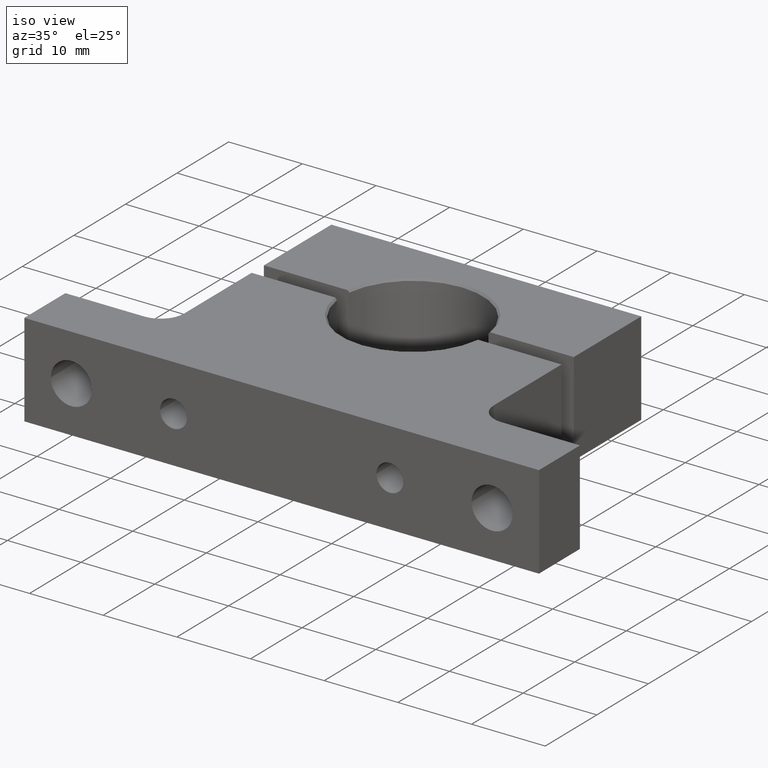
[diagram: clean part render]
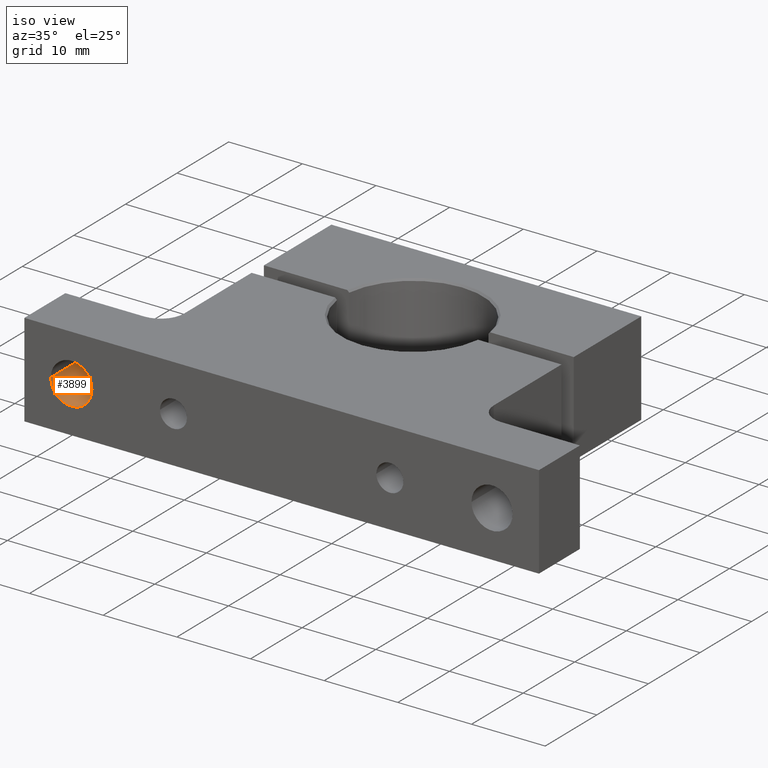
[diagram: same view with one face highlighted and labeled with its STEP entity id]
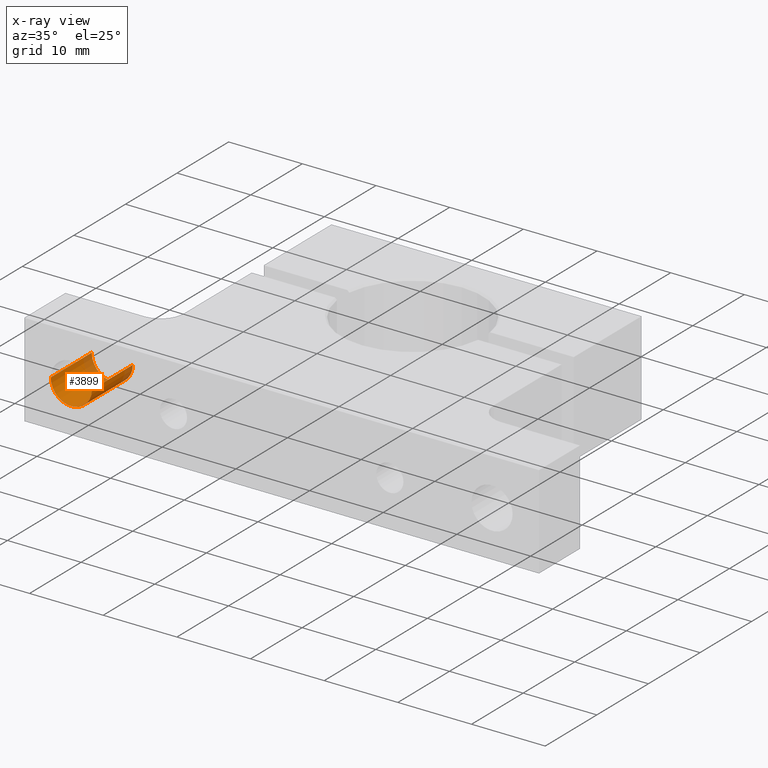
[diagram: x-ray of the same camera — body ghosted, the highlighted face saturated]
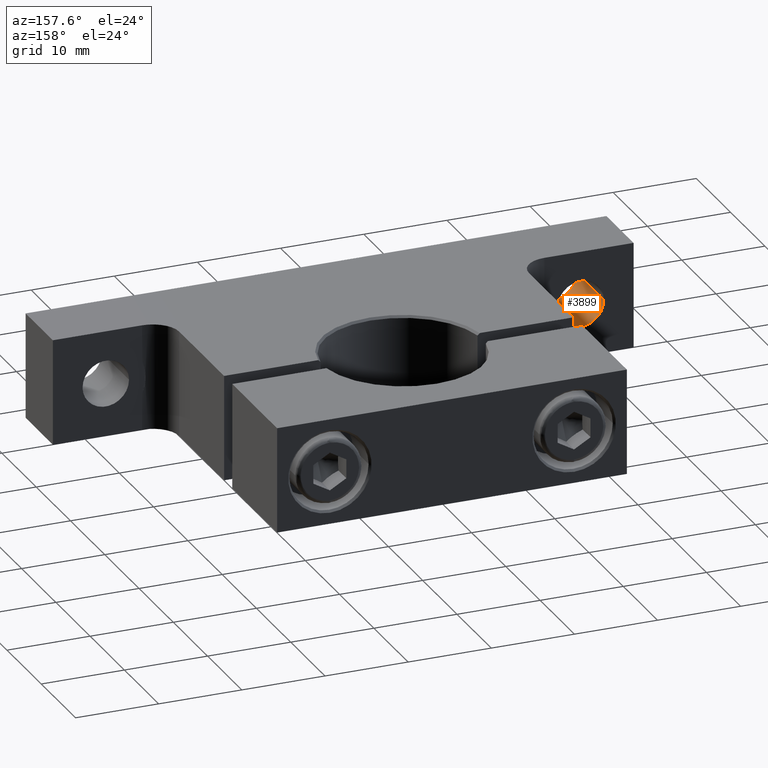
[diagram: same view with one face highlighted and labeled with its STEP entity id]
A machine part, iso view. The second image highlights one B-rep face of the part: STEP entity #3899.
The next image is the same camera in x-ray: the body ghosted, the highlighted face saturated — about 19% of this face is hidden behind the body in this view.
A second angle (auxiliary view) of the same face is appended — the face is thin or edge-on in the first view.
In plain terms, the highlighted cylindrical surface (edge-blend (fillet) strip) has radius 2.794 mm, axis along (-0, 1, 0).
Its self-contained STEP definition (entity closure, byte-faithful):
#170 = CYLINDRICAL_SURFACE ( 'NONE', #4705, 0.1099999999999999200 ) ;
#240 = AXIS2_PLACEMENT_3D ( 'NONE', #1798, #4463, #2159 ) ;
#460 = CARTESIAN_POINT ( 'NONE',  ( -1.234124999999999000, -3.640625000000001300, 0.0000000000000000000 ) ) ;
#635 = VECTOR ( 'NONE', #3107, 39.37007874015748100 ) ;
#653 = FACE_OUTER_BOUND ( 'NONE', #2582, .T. ) ;
#850 = VECTOR ( 'NONE', #2172, 39.37007874015748100 ) ;
#900 = EDGE_CURVE ( 'NONE', #4276, #3120, #2553, .T. ) ;
#967 = LINE ( 'NONE', #4476, #850 ) ;
#1349 = ORIENTED_EDGE ( 'NONE', *, *, #900, .F. ) ;
#1382 = ORIENTED_EDGE ( 'NONE', *, *, #2248, .F. ) ;
#1463 = ORIENTED_EDGE ( 'NONE', *, *, #3963, .T. ) ;
#1501 = CARTESIAN_POINT ( 'NONE',  ( -1.124125000000000300, -0.6875000000000002200, 0.0000000000000000000 ) ) ;
#1512 = AXIS2_PLACEMENT_3D ( 'NONE', #1501, #4169, #1894 ) ;
#1790 = ORIENTED_EDGE ( 'NONE', *, *, #2767, .F. ) ;
#1798 = CARTESIAN_POINT ( 'NONE',  ( -1.124125000000000000, -1.000000000000002400, 0.0000000000000000000 ) ) ;
#1894 = DIRECTION ( 'NONE',  ( -1.000000000000000000, 0.0000000000000000000, 0.0000000000000000000 ) ) ;
#2159 = DIRECTION ( 'NONE',  ( -1.000000000000000000, 0.0000000000000000000, 0.0000000000000000000 ) ) ;
#2172 = DIRECTION ( 'NONE',  ( -4.143087000000000100E-016, 1.000000000000000000, 0.0000000000000000000 ) ) ;
#2248 = EDGE_CURVE ( 'NONE', #2565, #3450, #4159, .T. ) ;
#2419 = DIRECTION ( 'NONE',  ( -1.000000000000000000, 0.0000000000000000000, 0.0000000000000000000 ) ) ;
#2553 = CIRCLE ( 'NONE', #1512, 0.1100000000000000600 ) ;
#2565 = VERTEX_POINT ( 'NONE', #3833 ) ;
#2582 = EDGE_LOOP ( 'NONE', ( #1382, #1463, #1349, #1790 ) ) ;
#2640 = LINE ( 'NONE', #460, #635 ) ;
#2767 = EDGE_CURVE ( 'NONE', #3450, #4276, #2640, .T. ) ;
#2850 = CARTESIAN_POINT ( 'NONE',  ( -1.124124999999998900, -3.640625000000001300, 0.0000000000000000000 ) ) ;
#3107 = DIRECTION ( 'NONE',  ( -4.143087000000000100E-016, 1.000000000000000000, 0.0000000000000000000 ) ) ;
#3120 = VERTEX_POINT ( 'NONE', #3807 ) ;
#3450 = VERTEX_POINT ( 'NONE', #4793 ) ;
#3807 = CARTESIAN_POINT ( 'NONE',  ( -1.014125000000000200, -0.6875000000000002200, 1.347111479062088300E-017 ) ) ;
#3833 = CARTESIAN_POINT ( 'NONE',  ( -1.014125000000000200, -1.000000000000002400, 1.347111479062089900E-017 ) ) ;
#3899 = ADVANCED_FACE ( 'NONE', ( #653 ), #170, .F. ) ;
#3963 = EDGE_CURVE ( 'NONE', #2565, #3120, #967, .T. ) ;
#4159 = CIRCLE ( 'NONE', #240, 0.1099999999999999200 ) ;
#4169 = DIRECTION ( 'NONE',  ( 4.143087000000000100E-016, -1.000000000000000000, -0.0000000000000000000 ) ) ;
#4276 = VERTEX_POINT ( 'NONE', #4769 ) ;
#4463 = DIRECTION ( 'NONE',  ( -4.143087000000000100E-016, 1.000000000000000000, 0.0000000000000000000 ) ) ;
#4476 = CARTESIAN_POINT ( 'NONE',  ( -1.014124999999999100, -3.640625000000001300, 1.347111479062088800E-017 ) ) ;
#4705 = AXIS2_PLACEMENT_3D ( 'NONE', #2850, #4737, #2419 ) ;
#4737 = DIRECTION ( 'NONE',  ( -4.143087000000000100E-016, 1.000000000000000000, 0.0000000000000000000 ) ) ;
#4769 = CARTESIAN_POINT ( 'NONE',  ( -1.234125000000000400, -0.6875000000000002200, 0.0000000000000000000 ) ) ;
#4793 = CARTESIAN_POINT ( 'NONE',  ( -1.234125000000000100, -1.000000000000002400, 0.0000000000000000000 ) ) ;